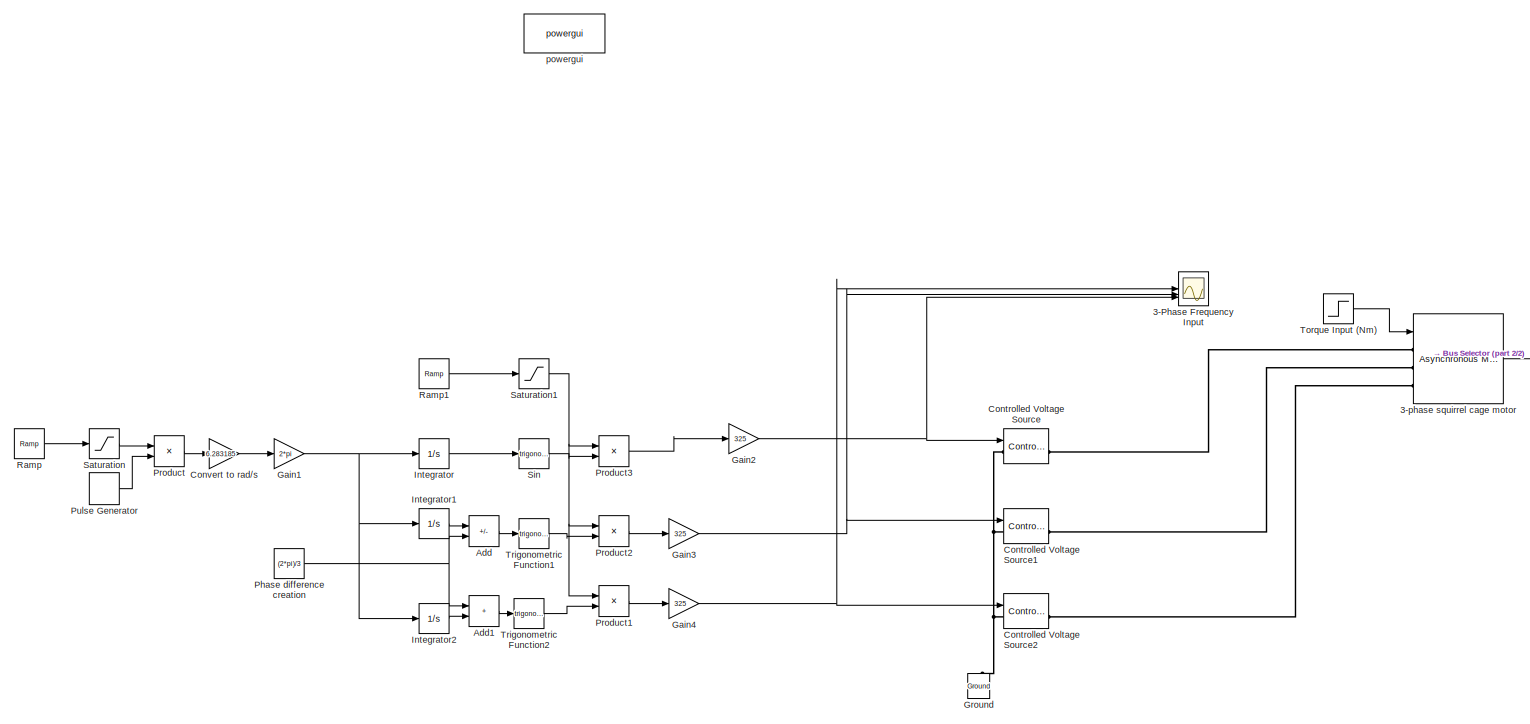
[diagram: root canvas - part 1/2, most of the canvas]
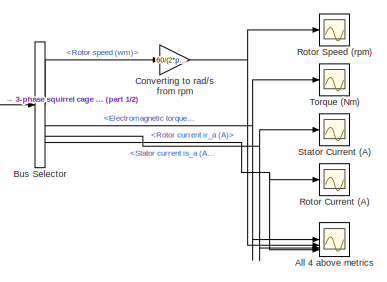
[diagram: root canvas - part 2/2, middle right region]
MODEL slx_ef0a7b97c6a5
KIND model
CONFIG AbsTol = auto
CONFIG EnableMultiTasking = off
CONFIG FixedStep = auto
CONFIG MaxStep = auto
CONFIG MinStep = auto
CONFIG RelTol = 1e-3
CONFIG SampleTimeConstraint = Unconstrained
CONFIG SolverName = VariableStepAuto
CONFIG StartTime = 0.0
CONFIG StopTime = 5
BLOCK [Reference]  3-phase squirrel cage motor  REF=spsAsynchronousMachineSIUnitsLib/Asynchronous Machine
SI Units
  LibrarySourceBlock = sps_lib/Electrical Machines/Asynchronous Machine\nSI Units
  SourceBlock = spsAsynchronousMachineSIUnitsLib/Asynchronous Machine\nSI Units
  SourceType = Asynchronous Machine
BLOCK [Scope]  Torque (Nm)
  Floating = off
  NumInputPorts = 1
  ScopeSpecificationString = Simulink.scopes.TimeScopeBlockCfg('CurrentConfiguration', extmgr.ConfigurationSet(extmgr.Configuration('Core','General UI',true),extmgr.Configuration('Core','Source UI',true),extmgr.Configuration('Sources','WiredSimulink',true,'DataLoggingVariableName','ScopeData1'),extmgr.Configuration('Visuals','Time Domain',true,'SerializedDisplays',{struct('MinYLimReal','-42.46024','MaxYLimReal','89.29474','YL...<+1514ch>
BLOCK [Scope] 3-Phase Frequency Input
  Floating = off
  NumInputPorts = 3
  ScopeSpecificationString = Simulink.scopes.TimeScopeBlockCfg('CurrentConfiguration', extmgr.ConfigurationSet(extmgr.Configuration('Core','General UI',true),extmgr.Configuration('Core','Source UI',true),extmgr.Configuration('Sources','WiredSimulink',true,'DataLoggingVariableName','ScopeData1'),extmgr.Configuration('Visuals','Time Domain',true,'SerializedDisplays',{struct('MinYLimReal','-406.25','MaxYLimReal','406.25','YLabel...<+1626ch>
BLOCK [Sum] Add
  IconShape = rectangular
  Inputs = +-
BLOCK [Sum] Add1
  IconShape = rectangular
BLOCK [Scope] All 4 above metrics
  Floating = off
  NumInputPorts = 4
  ScopeSpecificationString = Simulink.scopes.TimeScopeBlockCfg('CurrentConfiguration', extmgr.ConfigurationSet(extmgr.Configuration('Core','General UI',true),extmgr.Configuration('Core','Source UI',true),extmgr.Configuration('Sources','WiredSimulink',true,'DataLoggingVariableName','ScopeData2'),extmgr.Configuration('Visuals','Time Domain',true,'SerializedDisplays',{struct('MinYLimReal','-42.46024','MaxYLimReal','89.29474','YL...<+3905ch>
BLOCK [BusSelector] Bus Selector
  OutputSignals = Mechanical.Rotor speed (wm),Mechanical.Electromagnetic torque Te (N*m),Stator measurements.Stator current is_a (A),Rotor measurements.Rotor current ir_a (A)
BLOCK [Reference] Controlled Voltage Source  REF=spsControlledVoltageSourceLib/Controlled Voltage Source
  LibrarySourceBlock = sps_lib/Sources/Controlled Voltage Source
  NameLocation = left
  SourceBlock = spsControlledVoltageSourceLib/Controlled Voltage Source
  SourceType = Controlled Voltage Source
BLOCK [Reference] Controlled Voltage Source1  REF=spsControlledVoltageSourceLib/Controlled Voltage Source
  LibrarySourceBlock = sps_lib/Sources/Controlled Voltage Source
  NameLocation = left
  SourceBlock = spsControlledVoltageSourceLib/Controlled Voltage Source
  SourceType = Controlled Voltage Source
BLOCK [Reference] Controlled Voltage Source2  REF=spsControlledVoltageSourceLib/Controlled Voltage Source
  LibrarySourceBlock = sps_lib/Sources/Controlled Voltage Source
  NameLocation = left
  SourceBlock = spsControlledVoltageSourceLib/Controlled Voltage Source
  SourceType = Controlled Voltage Source
BLOCK [Gain] Convert to rad//s
  Gain = 6.283185
BLOCK [Gain] Converting to rad//s from rpm
  Gain = 60/(2*pi)
BLOCK [Gain] Gain1
  Gain = 2*pi
BLOCK [Gain] Gain2
  Gain = 325
BLOCK [Gain] Gain3
  Gain = 325
BLOCK [Gain] Gain4
  Gain = 325
BLOCK [Reference] Ground  REF=spsGroundLib/Ground
  LibrarySourceBlock = sps_lib/Utilities/Ground
  NameLocation = right
  SourceBlock = spsGroundLib/Ground
  SourceType = Ground
BLOCK [Integrator] Integrator
BLOCK [Integrator] Integrator1
BLOCK [Integrator] Integrator2
BLOCK [Constant] Phase difference creation
  Value = (2*pi)/3
BLOCK [Product] Product
BLOCK [Product] Product1
BLOCK [Product] Product2
BLOCK [Product] Product3
BLOCK [DiscretePulseGenerator] Pulse Generator
  Period = 0.0001
  PulseType = Time based
  PulseWidth = 5
BLOCK [Reference] Ramp  REF=simulink/Sources/Ramp
  SourceBlock = simulink/Sources/Ramp
  SourceType = Ramp
BLOCK [Reference] Ramp1  REF=simulink/Sources/Ramp
  SourceBlock = simulink/Sources/Ramp
  SourceType = Ramp
BLOCK [Scope] Rotor Current (A)
  Floating = off
  NumInputPorts = 1
  ScopeSpecificationString = Simulink.scopes.TimeScopeBlockCfg('CurrentConfiguration', extmgr.ConfigurationSet(extmgr.Configuration('Core','General UI',true),extmgr.Configuration('Core','Source UI',true),extmgr.Configuration('Sources','WiredSimulink',true,'DataLoggingVariableName','ScopeData2'),extmgr.Configuration('Visuals','Time Domain',true,'SerializedDisplays',{struct('MinYLimReal','-167.69883','MaxYLimReal','133.74434','...<+1424ch>
BLOCK [Scope] Rotor Speed (rpm)
  Floating = off
  NumInputPorts = 1
  ScopeSpecificationString = Simulink.scopes.TimeScopeBlockCfg('CurrentConfiguration', extmgr.ConfigurationSet(extmgr.Configuration('Core','General UI',true),extmgr.Configuration('Core','Source UI',true),extmgr.Configuration('Sources','WiredSimulink',true,'DataLoggingVariableName','ScopeData3'),extmgr.Configuration('Visuals','Time Domain',true,'SerializedDisplays',{struct('MinYLimReal','-59.63037','MaxYLimReal','536.67337','Y...<+1513ch>
BLOCK [Saturate] Saturation
  LowerLimit = 5
  UpperLimit = 50
BLOCK [Saturate] Saturation1
  UpperLimit = 1
BLOCK [Trigonometry] Sin
BLOCK [Scope] Stator Current (A) 
  Floating = off
  NumInputPorts = 1
  ScopeSpecificationString = Simulink.scopes.TimeScopeBlockCfg('CurrentConfiguration', extmgr.ConfigurationSet(extmgr.Configuration('Core','General UI',true),extmgr.Configuration('Core','Source UI',true),extmgr.Configuration('Sources','WiredSimulink',true,'DataLoggingVariableName','ScopeData5'),extmgr.Configuration('Visuals','Time Domain',true,'SerializedDisplays',{struct('MinYLimReal','-29.65352','MaxYLimReal','41.77899','YL...<+1506ch>
BLOCK [Step] Torque Input (Nm)
  After = 49.89
  SampleTime = 0
  Time = 1.5
BLOCK [Trigonometry] Trigonometric Function1
BLOCK [Trigonometry] Trigonometric Function2
BLOCK [Reference] powergui  REF=sps_lib/powergui
  LibrarySourceBlock = sps_lib/powergui
  Priority = 1
  SourceBlock = sps_lib/powergui
  SourceType = PSB option menu block
LINE  3-phase squirrel cage motor:1 -> Bus Selector:1
LINE Add1:1 -> Trigonometric Function2:1
LINE Add:1 -> Trigonometric Function1:1
LINE Bus Selector:1 -> Converting to rad//s from rpm:1
NET Bus Selector:2 ->  Torque (Nm):1, All 4 above metrics:1
NET Bus Selector:3 -> All 4 above metrics:3, Stator Current (A) :1
NET Bus Selector:4 -> All 4 above metrics:4, Rotor Current (A):1
LINE Convert to rad//s:1 -> Gain1:1
NET Converting to rad//s from rpm:1 -> All 4 above metrics:2, Rotor Speed (rpm):1
NET Gain1:1 -> Integrator1:1, Integrator2:1, Integrator:1
NET Gain2:1 -> 3-Phase Frequency Input:3, Controlled Voltage Source:1
NET Gain3:1 -> 3-Phase Frequency Input:2, Controlled Voltage Source1:1
NET Gain4:1 -> 3-Phase Frequency Input:1, Controlled Voltage Source2:1
LINE Integrator1:1 -> Add:1
LINE Integrator2:1 -> Add1:2
LINE Integrator:1 -> Sin:1
NET Phase difference creation:1 -> Add1:1, Add:2
LINE Product1:1 -> Gain4:1
LINE Product2:1 -> Gain3:1
LINE Product3:1 -> Gain2:1
LINE Product:1 -> Convert to rad//s:1
LINE Pulse Generator:1 -> Product:2
LINE Ramp1:1 -> Saturation1:1
LINE Ramp:1 -> Saturation:1
NET Saturation1:1 -> Product1:1, Product2:1, Product3:1
LINE Saturation:1 -> Product:1
LINE Sin:1 -> Product3:2
LINE Torque Input (Nm):1 ->  3-phase squirrel cage motor:1
LINE Trigonometric Function1:1 -> Product2:2
LINE Trigonometric Function2:1 -> Product1:2
PLINE  3-phase squirrel cage motor:LConn1 -- Controlled Voltage Source:RConn1
PLINE  3-phase squirrel cage motor:LConn2 -- Controlled Voltage Source1:RConn1
PLINE  3-phase squirrel cage motor:LConn3 -- Controlled Voltage Source2:RConn1
PNET net1: Controlled Voltage Source1:LConn1 -- Controlled Voltage Source2:LConn1 -- Controlled Voltage Source:LConn1 -- Ground:LConn1
note: NET lines group one-source signal fan-out (src -> all destinations, sorted); 1:1 wires keep LINE; PNET lines group multi-terminal physical nets as a canonical sorted terminal list (undirected conserving connections); 2-terminal nets keep the pairwise PLINE form
